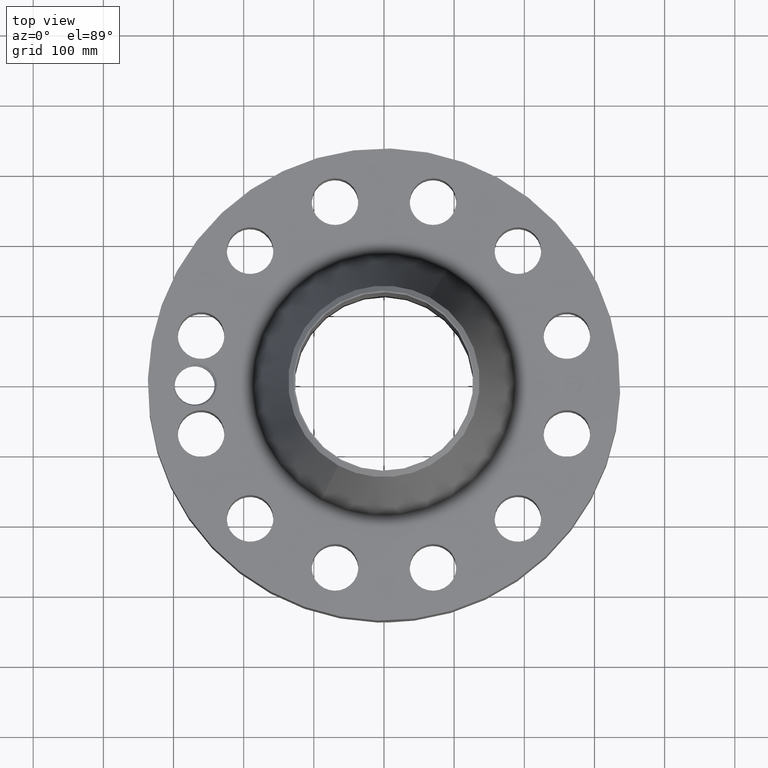
[diagram: clean part render]
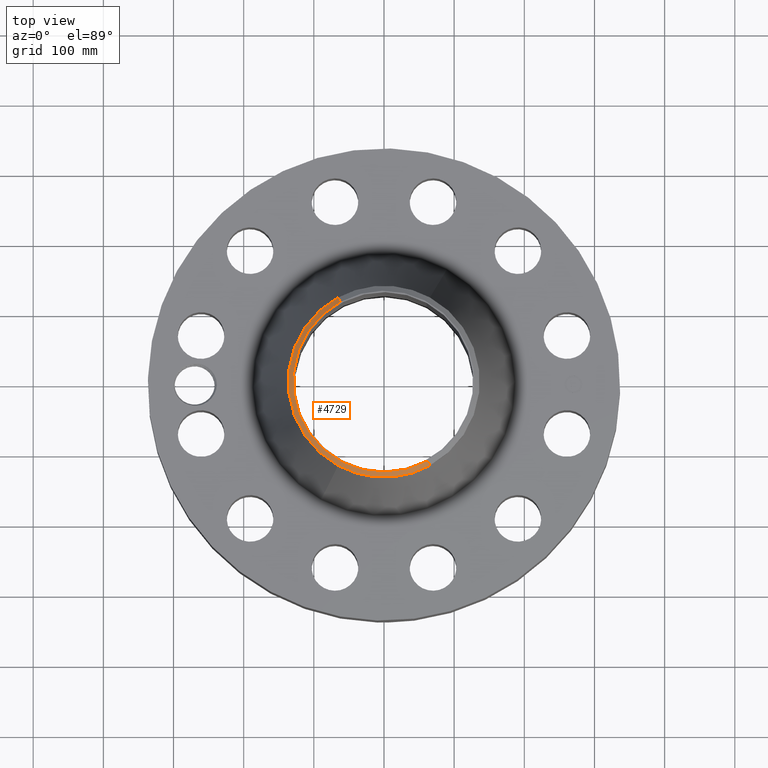
[diagram: same view with one face highlighted and labeled with its STEP entity id]
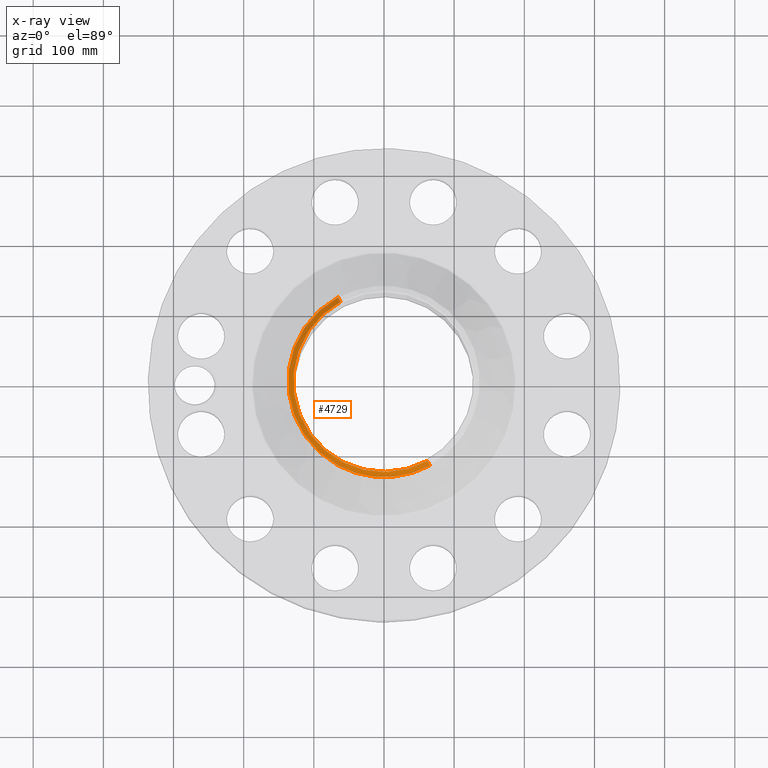
[diagram: x-ray of the same camera — body ghosted, the highlighted face saturated]
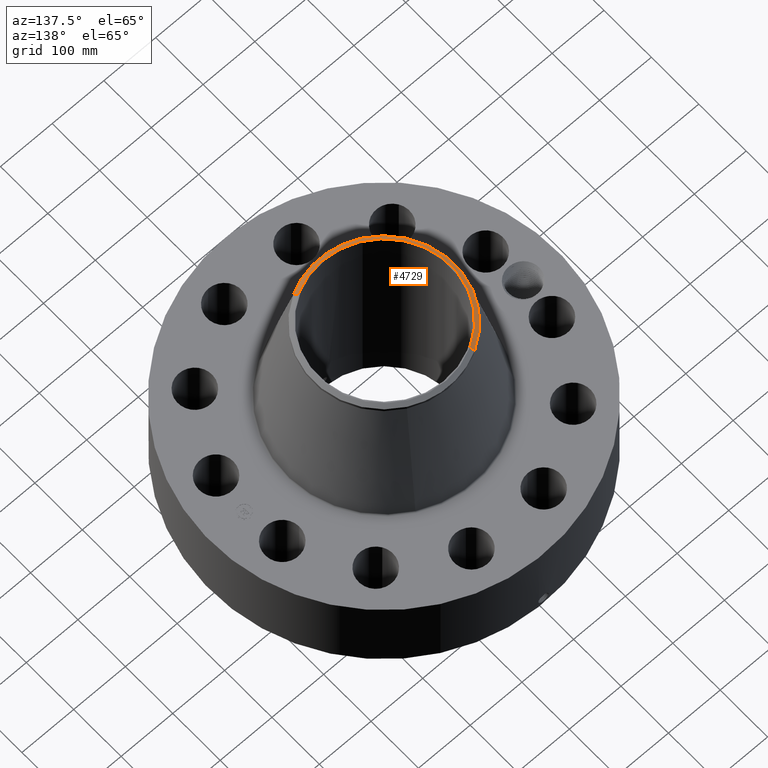
[diagram: same view with one face highlighted and labeled with its STEP entity id]
A machine part, top view. The second image highlights one B-rep face of the part: STEP entity #4729.
The next image is the same camera in x-ray: the body ghosted, the highlighted face saturated — about 0% of this face is hidden behind the body in this view.
A second angle (auxiliary view) of the same face is appended — the face is thin or edge-on in the first view.
In plain terms, the highlighted conical surface has half-angle 52.5 deg.
Its self-contained STEP definition (entity closure, byte-faithful):
#3516=AXIS2_PLACEMENT_3D('Circle Axis2P3D',#3514,#3515,$) ;
#3529=AXIS2_PLACEMENT_3D('Circle Axis2P3D',#3527,#3528,$) ;
#4334=AXIS2_PLACEMENT_3D('Circle Axis2P3D',#4332,#4333,$) ;
#4702=AXIS2_PLACEMENT_3D('Cone Axis2P3D',#4699,#4700,#4701) ;
#3497=CARTESIAN_POINT('Vertex',(-2.57691227001,-4.71700627018,16.5303450973)) ;
#3511=CARTESIAN_POINT('Vertex',(2.57691227001,-4.71700627018,16.5303450973)) ;
#3514=CARTESIAN_POINT('Axis2P3D Location',(0.,0.,16.5303450973)) ;
#3527=CARTESIAN_POINT('Axis2P3D Location',(0.,0.,16.5303450973)) ;
#3531=CARTESIAN_POINT('Vertex',(-2.57691227001,4.71700627018,16.5303450973)) ;
#4327=CARTESIAN_POINT('Vertex',(2.43967199083,-4.46578962421,16.7500000001)) ;
#4329=CARTESIAN_POINT('Vertex',(-2.43967199083,4.46578962421,16.7500000001)) ;
#4332=CARTESIAN_POINT('Axis2P3D Location',(0.,0.,16.7500000001)) ;
#4699=CARTESIAN_POINT('Axis2P3D Location',(0.,0.,16.7500000001)) ;
#4704=CARTESIAN_POINT('Line Origine',(-2.50829213042,4.5913979472,16.6401725487)) ;
#4709=CARTESIAN_POINT('Line Origine',(2.50829213042,-4.5913979472,16.6401725487)) ;
#3515=DIRECTION('Axis2P3D Direction',(0.,0.,-0.0393700787402)) ;
#3528=DIRECTION('Axis2P3D Direction',(0.,0.,-0.0393700787402)) ;
#4333=DIRECTION('Axis2P3D Direction',(0.,0.,-0.0393700787402)) ;
#4700=DIRECTION('Axis2P3D Direction',(-0.,-0.,-0.0393700787402)) ;
#4701=DIRECTION('Axis2P3D XDirection',(0.0188750212049,-0.0345504945626,0.)) ;
#4705=DIRECTION('Vector Direction',(-0.014974561121,0.02741075027,-0.023966985394)) ;
#4710=DIRECTION('Vector Direction',(0.014974561121,-0.02741075027,-0.023966985394)) ;
#4706=VECTOR('Line Direction',#4705,0.0393700787402) ;
#4711=VECTOR('Line Direction',#4710,0.0393700787402) ;
#4723=ORIENTED_EDGE('',*,*,#4713,.F.) ;
#4724=ORIENTED_EDGE('',*,*,#4336,.F.) ;
#4725=ORIENTED_EDGE('',*,*,#4708,.T.) ;
#4726=ORIENTED_EDGE('',*,*,#3533,.T.) ;
#4727=ORIENTED_EDGE('',*,*,#3518,.F.) ;
#4729=ADVANCED_FACE('PartBody',(#4728),#4703,.T.) ;
#3517=CIRCLE('generated circle',#3516,5.37500000002) ;
#3530=CIRCLE('generated circle',#3529,5.37500000002) ;
#4335=CIRCLE('generated circle',#4334,5.0887401575) ;
#4703=CONICAL_SURFACE('Cone',#4702,5.0887401575,0.916297857297) ;
#3518=EDGE_CURVE('',#3512,#3498,#3517,.T.) ;
#3533=EDGE_CURVE('',#3532,#3498,#3530,.F.) ;
#4336=EDGE_CURVE('',#4330,#4328,#4335,.F.) ;
#4708=EDGE_CURVE('',#4330,#3532,#4707,.T.) ;
#4713=EDGE_CURVE('',#4328,#3512,#4712,.T.) ;
#4722=EDGE_LOOP('',(#4723,#4724,#4725,#4726,#4727)) ;
#4728=FACE_OUTER_BOUND('',#4722,.T.) ;
#4707=LINE('Line',#4704,#4706) ;
#4712=LINE('Line',#4709,#4711) ;
#3498=VERTEX_POINT('',#3497) ;
#3512=VERTEX_POINT('',#3511) ;
#3532=VERTEX_POINT('',#3531) ;
#4328=VERTEX_POINT('',#4327) ;
#4330=VERTEX_POINT('',#4329) ;